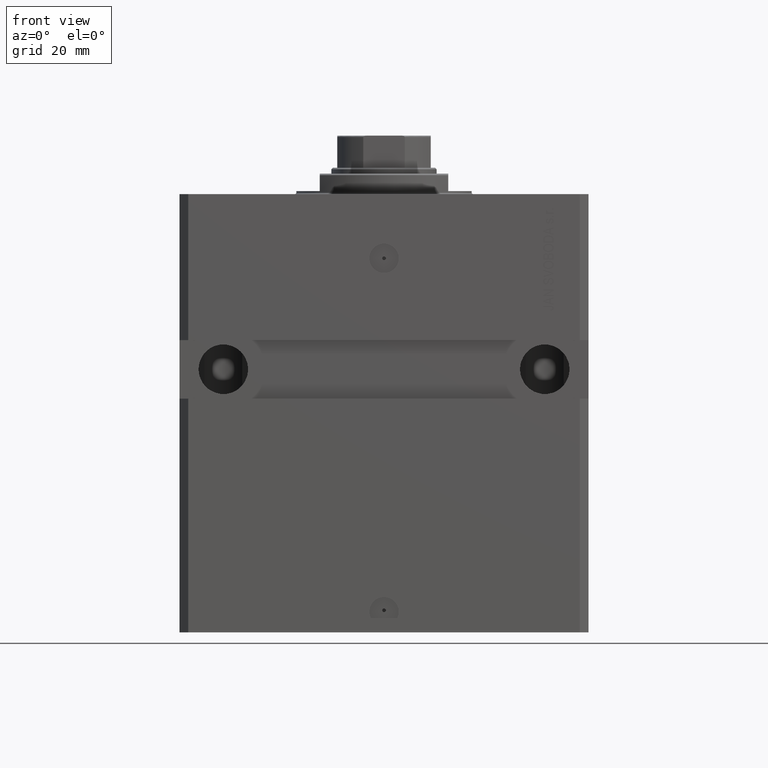
[diagram: clean part render]
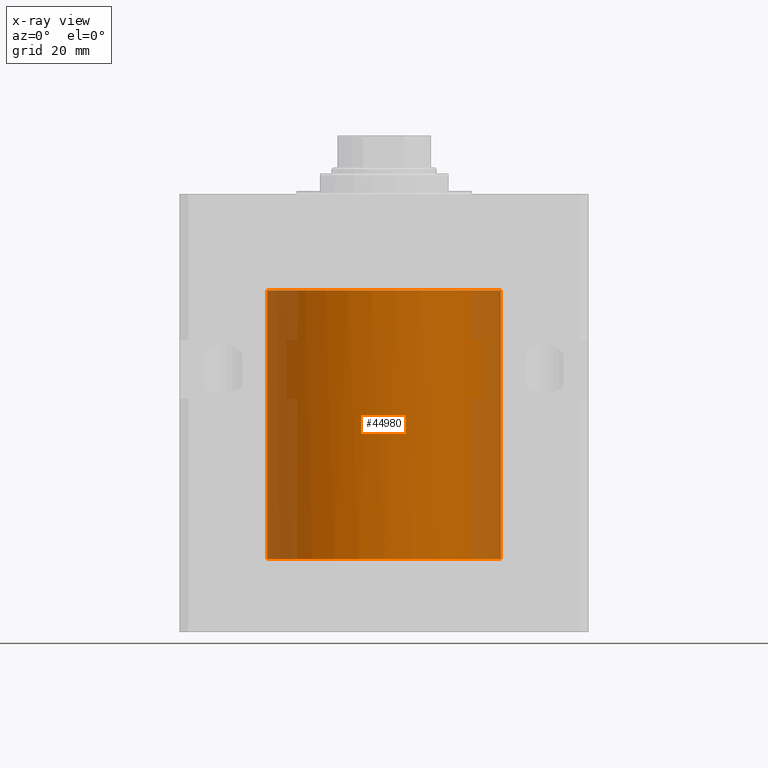
[diagram: x-ray — body ghosted, one internal face saturated and labeled with its STEP entity id]
A machine part, front view, then the same camera in x-ray: the body is ghosted and one INTERNAL B-rep face — a face not visible from any outside direction — is saturated and labeled: STEP entity #44980.
In plain terms, the highlighted cylindrical surface (partial cylindrical patch) has radius 40 mm, axis along (0, 0, 1).
Its self-contained STEP definition (entity closure, byte-faithful):
#194 = ORIENTED_EDGE ( 'NONE', *, *, #10499, .F. ) ;
#2569 = CARTESIAN_POINT ( 'NONE',  ( -40.00000000000004974, 3.462873814982701370E-13, -35.62500000000321165 ) ) ;
#3271 = CARTESIAN_POINT ( 'NONE',  ( -39.99628640843519634, -0.5459479463223896323, -124.6849077326972406 ) ) ;
#3563 = DIRECTION ( 'NONE',  ( -0.000000000000000000, -0.000000000000000000, 1.000000000000000000 ) ) ;
#3641 = ORIENTED_EDGE ( 'NONE', *, *, #25761, .T. ) ;
#4010 = CARTESIAN_POINT ( 'NONE',  ( 40.00000000000000000, 0.000000000000000000, -125.0000000000000000 ) ) ;
#5042 = AXIS2_PLACEMENT_3D ( 'NONE', #14491, #22617, #6842 ) ;
#5770 = CARTESIAN_POINT ( 'NONE',  ( -40.00000000000000000, -0.1631285566730246439, -35.62500000000014211 ) ) ;
#6842 = DIRECTION ( 'NONE',  ( 1.000000000000000000, 0.000000000000000000, 0.000000000000000000 ) ) ;
#6860 = CARTESIAN_POINT ( 'NONE',  ( 0.000000000000000000, 0.000000000000000000, -125.0000000000000000 ) ) ;
#7444 = CARTESIAN_POINT ( 'NONE',  ( -40.00000000000000000, -0.1631018314110824485, -124.3749999999996305 ) ) ;
#7762 = VERTEX_POINT ( 'NONE', #40844 ) ;
#7877 = AXIS2_PLACEMENT_3D ( 'NONE', #6860, #48802, #33498 ) ;
#9861 = VERTEX_POINT ( 'NONE', #47461 ) ;
#10268 = VECTOR ( 'NONE', #3563, 1000.000000000000000 ) ;
#10449 = CARTESIAN_POINT ( 'NONE',  ( -39.99628006738579700, -0.5575649541242133633, -34.67384558076868473 ) ) ;
#10499 = EDGE_CURVE ( 'NONE', #19996, #30729, #30692, .T. ) ;
#11053 = ORIENTED_EDGE ( 'NONE', *, *, #14478, .T. ) ;
#11858 = EDGE_CURVE ( 'NONE', #22678, #27466, #30728, .T. ) ;
#12053 = CARTESIAN_POINT ( 'NONE',  ( -40.00000000000000000, 1.067655236296513633E-14, -34.37500000000000000 ) ) ;
#13051 = LINE ( 'NONE', #31313, #32394 ) ;
#13425 = CARTESIAN_POINT ( 'NONE',  ( -39.99883003604586662, -0.3269459501876756935, -34.44289881627523187 ) ) ;
#14163 = CARTESIAN_POINT ( 'NONE',  ( -39.99883528402092026, -0.3263077590334985123, -35.55741295708847360 ) ) ;
#14478 = EDGE_CURVE ( 'NONE', #7762, #9861, #45024, .T. ) ;
#14491 = CARTESIAN_POINT ( 'NONE',  ( 0.000000000000000000, 0.000000000000000000, -125.0000000000000000 ) ) ;
#14610 = CARTESIAN_POINT ( 'NONE',  ( -39.99511688944039633, -0.6250000000000021094, -125.0000000000000000 ) ) ;
#16492 = B_SPLINE_CURVE_WITH_KNOTS ( 'NONE', 3,
 ( #2569, #5770, #14163, #20829, #35863, #47234, #10449, #13425, #17390, #28714 ),
 .UNSPECIFIED., .F., .F.,
 ( 4, 2, 2, 2, 4 ),
 ( 0.001954065476890838940, 0.002442471498614544496, 0.002930877520338250053, 0.003419283542061955609, 0.003907689563785661166 ),
 .UNSPECIFIED. ) ;
#16668 = ORIENTED_EDGE ( 'NONE', *, *, #11858, .T. ) ;
#17257 = EDGE_CURVE ( 'NONE', #46873, #22678, #13051, .T. ) ;
#17390 = CARTESIAN_POINT ( 'NONE',  ( -39.99999999999999289, -0.1651462076627460140, -34.37500000000000711 ) ) ;
#17537 = ORIENTED_EDGE ( 'NONE', *, *, #46448, .T. ) ;
#17946 = DIRECTION ( 'NONE',  ( 1.000000000000000000, 0.000000000000000000, 0.000000000000000000 ) ) ;
#18437 = EDGE_LOOP ( 'NONE', ( #17537, #11053, #3641, #42381, #16668, #46861, #194 ) ) ;
#19996 = VERTEX_POINT ( 'NONE', #45358 ) ;
#20829 = CARTESIAN_POINT ( 'NONE',  ( -39.99628864179531007, -0.5569521649436425248, -35.32709363231368371 ) ) ;
#21883 = CARTESIAN_POINT ( 'NONE',  ( 0.000000000000000000, 0.000000000000000000, -33.00000000000000000 ) ) ;
#22265 = CARTESIAN_POINT ( 'NONE',  ( -40.00000000000012790, 9.803334896741571174E-13, -124.3749999999916866 ) ) ;
#22377 = FACE_OUTER_BOUND ( 'NONE', #18437, .T. ) ;
#22617 = DIRECTION ( 'NONE',  ( -0.000000000000000000, -0.000000000000000000, 1.000000000000000000 ) ) ;
#22678 = VERTEX_POINT ( 'NONE', #45274 ) ;
#25761 = EDGE_CURVE ( 'NONE', #9861, #46873, #16492, .T. ) ;
#25961 = CARTESIAN_POINT ( 'NONE',  ( -39.99883487683936778, -0.3263849897136452682, -124.4425836535757099 ) ) ;
#26019 = CARTESIAN_POINT ( 'NONE',  ( -40.00000000000000000, 4.898587196589413026E-15, -125.0000000000000000 ) ) ;
#27002 = CARTESIAN_POINT ( 'NONE',  ( 40.00000000000000000, 0.000000000000000000, -33.00000000000000000 ) ) ;
#27466 = VERTEX_POINT ( 'NONE', #27002 ) ;
#27723 = B_SPLINE_CURVE_WITH_KNOTS ( 'NONE', 3,
 ( #14610, #41738, #44718, #3271, #45444, #25961, #7444, #22265 ),
 .UNSPECIFIED., .F., .F.,
 ( 4, 2, 2, 4 ),
 ( 0.000000000000000000, 0.0002443135086022737578, 0.0004886270172045475155, 0.0009772540344090950310 ),
 .UNSPECIFIED. ) ;
#28714 = CARTESIAN_POINT ( 'NONE',  ( -40.00000000000000000, 1.067655236296513633E-14, -34.37500000000000000 ) ) ;
#29297 = CARTESIAN_POINT ( 'NONE',  ( 40.00000000000000000, 0.000000000000000000, -125.0000000000000000 ) ) ;
#30692 = CIRCLE ( 'NONE', #7877, 40.00000000000000000 ) ;
#30728 = CIRCLE ( 'NONE', #40891, 40.00000000000000000 ) ;
#30729 = VERTEX_POINT ( 'NONE', #4010 ) ;
#31313 = CARTESIAN_POINT ( 'NONE',  ( -40.00000000000000000, 4.898587196589413026E-15, -125.0000000000000000 ) ) ;
#32394 = VECTOR ( 'NONE', #35256, 1000.000000000000000 ) ;
#32997 = LINE ( 'NONE', #29297, #41342 ) ;
#33498 = DIRECTION ( 'NONE',  ( 1.000000000000000000, 0.000000000000000000, 0.000000000000000000 ) ) ;
#35256 = DIRECTION ( 'NONE',  ( -0.000000000000000000, -0.000000000000000000, 1.000000000000000000 ) ) ;
#35863 = CARTESIAN_POINT ( 'NONE',  ( -39.99511905822721047, -0.6248612145393632744, -35.16536149642366382 ) ) ;
#36925 = DIRECTION ( 'NONE',  ( 0.000000000000000000, 0.000000000000000000, 1.000000000000000000 ) ) ;
#37429 = CYLINDRICAL_SURFACE ( 'NONE', #5042, 40.00000000000000000 ) ;
#40844 = CARTESIAN_POINT ( 'NONE',  ( -40.00000000000012790, 9.803334896741571174E-13, -124.3749999999916866 ) ) ;
#40891 = AXIS2_PLACEMENT_3D ( 'NONE', #21883, #36925, #17946 ) ;
#41342 = VECTOR ( 'NONE', #44358, 1000.000000000000000 ) ;
#41738 = CARTESIAN_POINT ( 'NONE',  ( -39.99511688944040344, -0.6250000000000018874, -124.9173895331963848 ) ) ;
#42381 = ORIENTED_EDGE ( 'NONE', *, *, #17257, .T. ) ;
#44358 = DIRECTION ( 'NONE',  ( -0.000000000000000000, -0.000000000000000000, 1.000000000000000000 ) ) ;
#44718 = CARTESIAN_POINT ( 'NONE',  ( -39.99538013934520109, -0.6087307573489180168, -124.8363260495221425 ) ) ;
#44980 = ADVANCED_FACE ( 'NONE', ( #22377 ), #37429, .F. ) ;
#45024 = LINE ( 'NONE', #26019, #10268 ) ;
#45274 = CARTESIAN_POINT ( 'NONE',  ( -40.00000000000000000, 4.898587196589413026E-15, -33.00000000000000000 ) ) ;
#45358 = CARTESIAN_POINT ( 'NONE',  ( -39.99511688944039633, -0.6250000000000021094, -125.0000000000000000 ) ) ;
#45444 = CARTESIAN_POINT ( 'NONE',  ( -39.99692294640741608, -0.4994842196616029462, -124.6155597569167668 ) ) ;
#46147 = EDGE_CURVE ( 'NONE', #30729, #27466, #32997, .T. ) ;
#46448 = EDGE_CURVE ( 'NONE', #19996, #7762, #27723, .T. ) ;
#46861 = ORIENTED_EDGE ( 'NONE', *, *, #46147, .F. ) ;
#46873 = VERTEX_POINT ( 'NONE', #12053 ) ;
#47234 = CARTESIAN_POINT ( 'NONE',  ( -39.99511472755523300, -0.6251383438089350708, -34.83568927900195433 ) ) ;
#47461 = CARTESIAN_POINT ( 'NONE',  ( -40.00000000000004974, 3.462873814982701370E-13, -35.62500000000321165 ) ) ;
#48802 = DIRECTION ( 'NONE',  ( 0.000000000000000000, 0.000000000000000000, 1.000000000000000000 ) ) ;